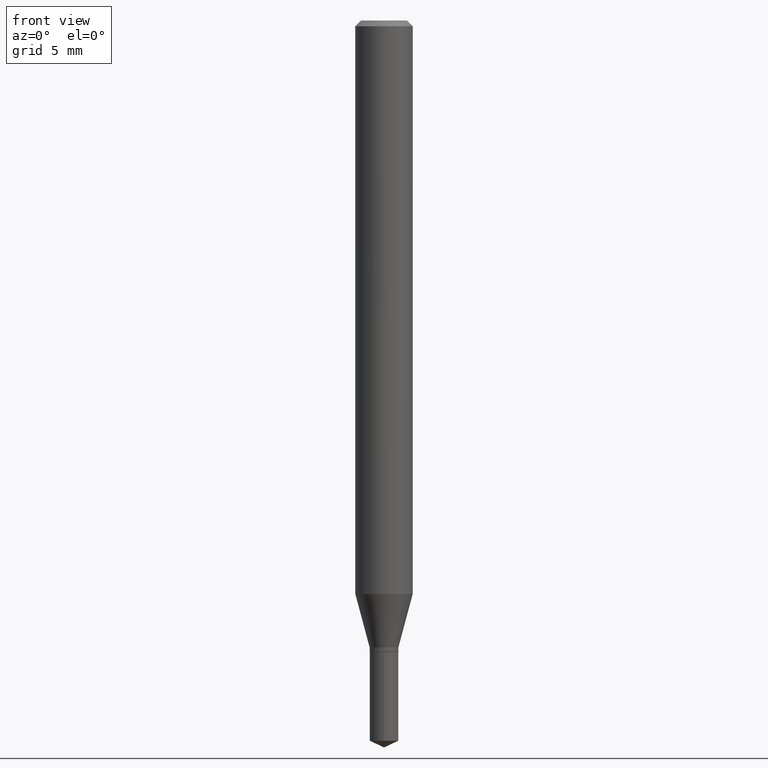
[diagram: clean part render]
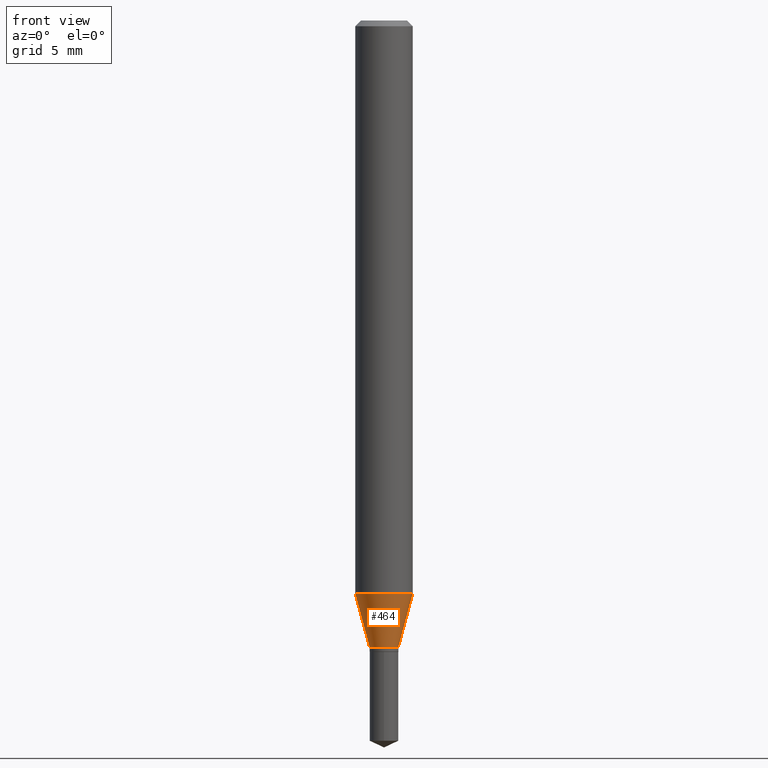
[diagram: same view with one face highlighted and labeled with its STEP entity id]
A machine part, front view. The second image highlights one B-rep face of the part: STEP entity #464.
In plain terms, the highlighted conical surface has half-angle 15 deg.
Its self-contained STEP definition (entity closure, byte-faithful):
#9 = DIRECTION ( 'NONE',  ( -2.445468806185136597E-29, 3.491481338843145583E-15, 1.000000000000000000 ) ) ;
#16 = CARTESIAN_POINT ( 'NONE',  ( -0.05905000000000014404, -3.701086506410853465E-15, -1.180204501176717713 ) ) ;
#20 = VECTOR ( 'NONE', #342, 39.37007874015747433 ) ;
#24 = DIRECTION ( 'NONE',  ( 1.000000000000000000, -6.982962677686265922E-15, 0.000000000000000000 ) ) ;
#54 = ORIENTED_EDGE ( 'NONE', *, *, #263, .F. ) ;
#55 = DIRECTION ( 'NONE',  ( -2.445468806185136597E-29, 3.491481338843145583E-15, 1.000000000000000000 ) ) ;
#64 = DIRECTION ( 'NONE',  ( -2.445468806185136597E-29, 3.491481338843145583E-15, 1.000000000000000000 ) ) ;
#74 = EDGE_LOOP ( 'NONE', ( #264, #261, #300, #54 ) ) ;
#85 = CARTESIAN_POINT ( 'NONE',  ( 2.886153292546952505E-29, -4.120661991877192958E-15, -1.180204501176717713 ) ) ;
#100 = VERTEX_POINT ( 'NONE', #159 ) ;
#101 = CARTESIAN_POINT ( 'NONE',  ( 3.155388400620681599E-29, -4.505058371509310392E-15, -1.290300000000000002 ) ) ;
#113 = CIRCLE ( 'NONE', #171, 0.05905000000000014404 ) ;
#114 = VERTEX_POINT ( 'NONE', #272 ) ;
#135 = VERTEX_POINT ( 'NONE', #175 ) ;
#153 = CIRCLE ( 'NONE', #287, 0.02954999999999998253 ) ;
#159 = CARTESIAN_POINT ( 'NONE',  ( 0.05905000000000014404, -4.533005937994568667E-15, -1.180204501176717713 ) ) ;
#171 = AXIS2_PLACEMENT_3D ( 'NONE', #85, #9, #458 ) ;
#175 = CARTESIAN_POINT ( 'NONE',  ( -0.02954999999999998253, -4.309757214715342453E-15, -1.290300000000000002 ) ) ;
#182 = EDGE_CURVE ( 'NONE', #135, #114, #153, .T. ) ;
#192 = LINE ( 'NONE', #220, #20 ) ;
#220 = CARTESIAN_POINT ( 'NONE',  ( -0.02954999999999998253, -4.295092993092201035E-15, -1.290300000000000002 ) ) ;
#223 = CARTESIAN_POINT ( 'NONE',  ( 0.02954999999999998253, -4.711404918634939214E-15, -1.290300000000000002 ) ) ;
#228 = VECTOR ( 'NONE', #302, 39.37007874015747433 ) ;
#233 = FACE_OUTER_BOUND ( 'NONE', #74, .T. ) ;
#254 = EDGE_CURVE ( 'NONE', #114, #100, #382, .T. ) ;
#261 = ORIENTED_EDGE ( 'NONE', *, *, #182, .T. ) ;
#263 = EDGE_CURVE ( 'NONE', #434, #100, #113, .T. ) ;
#264 = ORIENTED_EDGE ( 'NONE', *, *, #285, .F. ) ;
#272 = CARTESIAN_POINT ( 'NONE',  ( 0.02954999999999998253, -4.711404918634939214E-15, -1.290300000000000002 ) ) ;
#285 = EDGE_CURVE ( 'NONE', #135, #434, #192, .T. ) ;
#287 = AXIS2_PLACEMENT_3D ( 'NONE', #316, #64, #472 ) ;
#300 = ORIENTED_EDGE ( 'NONE', *, *, #254, .T. ) ;
#302 = DIRECTION ( 'NONE',  ( 0.2588190451025214611, 1.565188264969621573E-15, 0.9659258262890682012 ) ) ;
#316 = CARTESIAN_POINT ( 'NONE',  ( 3.155388400620681599E-29, -4.505058371509310392E-15, -1.290300000000000002 ) ) ;
#342 = DIRECTION ( 'NONE',  ( -0.2588190451025214611, 5.211531920934551042E-15, 0.9659258262890682012 ) ) ;
#382 = LINE ( 'NONE', #223, #228 ) ;
#434 = VERTEX_POINT ( 'NONE', #16 ) ;
#458 = DIRECTION ( 'NONE',  ( 1.000000000000000000, -6.982962677686272233E-15, 0.000000000000000000 ) ) ;
#462 = CONICAL_SURFACE ( 'NONE', #481, 0.02954999999999998253, 0.2617993877991501295 ) ;
#464 = ADVANCED_FACE ( 'NONE', ( #233 ), #462, .T. ) ;
#472 = DIRECTION ( 'NONE',  ( 1.000000000000000000, -6.982962677686265922E-15, 0.000000000000000000 ) ) ;
#481 = AXIS2_PLACEMENT_3D ( 'NONE', #101, #55, #24 ) ;